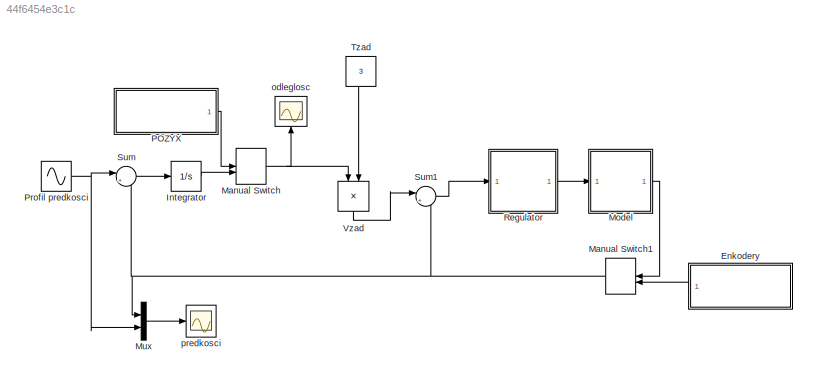
MODEL slx_44f6454e3c1c
KIND model
CONFIG AbsTol = auto
CONFIG EnableMultiTasking = off
CONFIG FixedStep = 0.001
CONFIG MaxStep = auto
CONFIG MinStep = auto
CONFIG RelTol = 1e-3
CONFIG SampleTimeConstraint = Unconstrained
CONFIG Solver = FixedStepAuto
CONFIG SolverName = FixedStepAuto
CONFIG StartTime = 0.0
CONFIG StopTime = 100.0
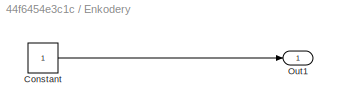
BLOCK [SubSystem] Enkodery
  Ports = [0, 1]
  RequestExecContextInheritance = off
BLOCK [Constant] Enkodery/Constant
BLOCK [Outport] Enkodery/Out1
  IconDisplay = Port number
BLOCK [Integrator] Integrator
  InitialCondition = 3
  Ports = [1, 1]
BLOCK [ManualSwitch] Manual Switch
  CurrentSetting = 0
BLOCK [ManualSwitch] Manual Switch1
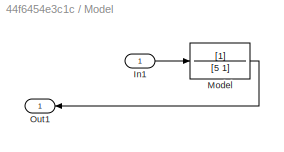
BLOCK [SubSystem] Model
  Ports = [1, 1]
  RequestExecContextInheritance = off
BLOCK [Inport] Model/In1
  IconDisplay = Port number
BLOCK [TransferFcn] Model/Model
  Denominator = [5 1]
BLOCK [Outport] Model/Out1
  IconDisplay = Port number
BLOCK [Mux] Mux
  DisplayOption = bar
  Inputs = 2
  Ports = [2, 1]
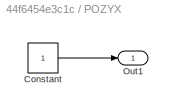
BLOCK [SubSystem] POZYX
  Ports = [0, 1]
  RequestExecContextInheritance = off
BLOCK [Constant] POZYX/Constant
BLOCK [Outport] POZYX/Out1
  IconDisplay = Port number
BLOCK [Sin] Profil predkosci
  Amplitude = 0.5
  Bias = 3
  Frequency = 0.5
  Ports = [0, 1]
  SampleTime = 0
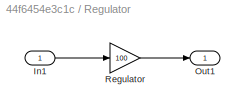
BLOCK [SubSystem] Regulator
  Ports = [1, 1]
  RequestExecContextInheritance = off
BLOCK [Inport] Regulator/In1
  IconDisplay = Port number
BLOCK [Outport] Regulator/Out1
  IconDisplay = Port number
BLOCK [Gain] Regulator/Regulator
  Gain = 100
  OutDataTypeStr = Inherit: Inherit via internal rule
  ParamDataTypeStr = Inherit: Inherit via internal rule
  SaturateOnIntegerOverflow = off
BLOCK [Sum] Sum
  IconShape = round
  InputSameDT = off
  Inputs = |+-
  OutDataTypeStr = Inherit: Inherit via internal rule
  Ports = [2, 1]
  SaturateOnIntegerOverflow = off
BLOCK [Sum] Sum1
  IconShape = round
  InputSameDT = off
  Inputs = |+-
  OutDataTypeStr = Inherit: Inherit via internal rule
  Ports = [2, 1]
  SaturateOnIntegerOverflow = off
BLOCK [Constant] Tzad
  Value = 3
BLOCK [Product] Vzad
  InputSameDT = off
  Inputs = */
  OutDataTypeStr = Inherit: Inherit via internal rule
  Ports = [2, 1]
  RndMeth = Floor
  SaturateOnIntegerOverflow = off
BLOCK [Scope] odleglosc 
  Floating = off
  NumInputPorts = 1
  Ports = [1]
  ScopeSpecificationString = Simulink.scopes.TimeScopeBlockCfg('CurrentConfiguration', extmgr.ConfigurationSet(extmgr.Configuration('Core','General UI',true),extmgr.Configuration('Core','Source UI',true),extmgr.Configuration('Sources','WiredSimulink',true,'DataLoggingVariableName','ScopeData1'),extmgr.Configuration('Visuals','Time Domain',true,'SerializedDisplays',{struct('MinYLimReal','2.13321','MaxYLimReal','10.80111','YLab...<+1402ch>
BLOCK [Scope] predkosci
  Floating = off
  NumInputPorts = 1
  Ports = [1]
  ScopeSpecificationString = Simulink.scopes.TimeScopeBlockCfg('CurrentConfiguration', extmgr.ConfigurationSet(extmgr.Configuration('Core','General UI',true),extmgr.Configuration('Core','Source UI',true),extmgr.Configuration('Sources','WiredSimulink',true),extmgr.Configuration('Visuals','Time Domain',true,'SerializedDisplays',{struct('MinYLimReal','-0.4375','MaxYLimReal','3.9375','YLabelReal','','MinYLimMag','0.00000','MaxYLi...<+1347ch>
LINE Enkodery/Constant:1 -> Enkodery/Out1:1
LINE Enkodery:1 -> Manual Switch1:2
LINE Integrator:1 -> Manual Switch:2
NET Manual Switch1:1 -> Mux:1, Sum1:2, Sum:2
NET Manual Switch:1 -> Vzad:1, odleglosc :1
LINE Model/In1:1 -> Model/Model:1
LINE Model/Model:1 -> Model/Out1:1
LINE Model:1 -> Manual Switch1:1
LINE Mux:1 -> predkosci:1
LINE POZYX/Constant:1 -> POZYX/Out1:1
LINE POZYX:1 -> Manual Switch:1
NET Profil predkosci:1 -> Mux:2, Sum:1
LINE Regulator/In1:1 -> Regulator/Regulator:1
LINE Regulator/Regulator:1 -> Regulator/Out1:1
LINE Regulator:1 -> Model:1
LINE Sum1:1 -> Regulator:1
LINE Sum:1 -> Integrator:1
LINE Tzad:1 -> Vzad:2
LINE Vzad:1 -> Sum1:1
note: NET lines group one-source signal fan-out (src -> all destinations, sorted); 1:1 wires keep LINE
